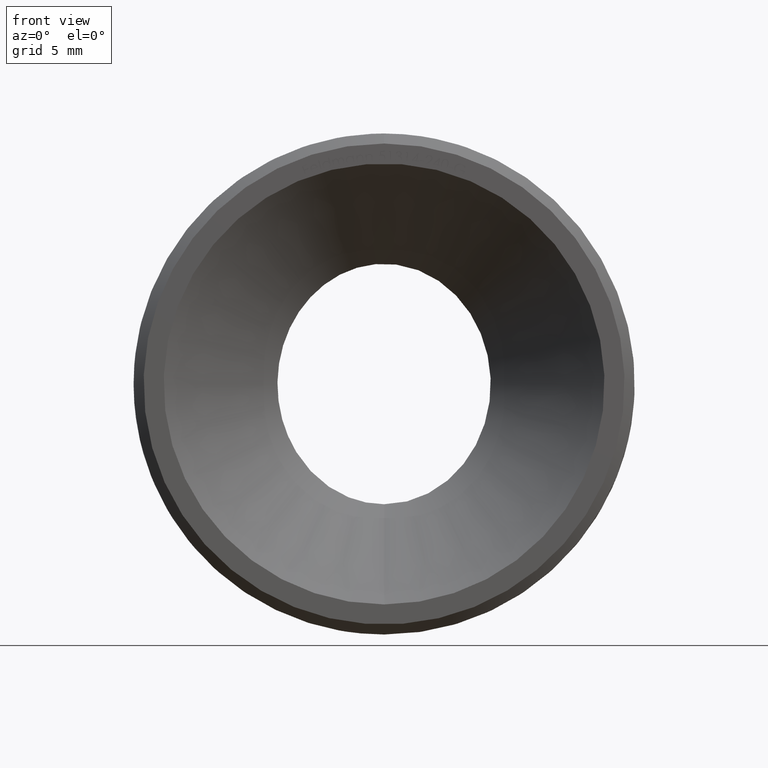
[diagram: clean part render]
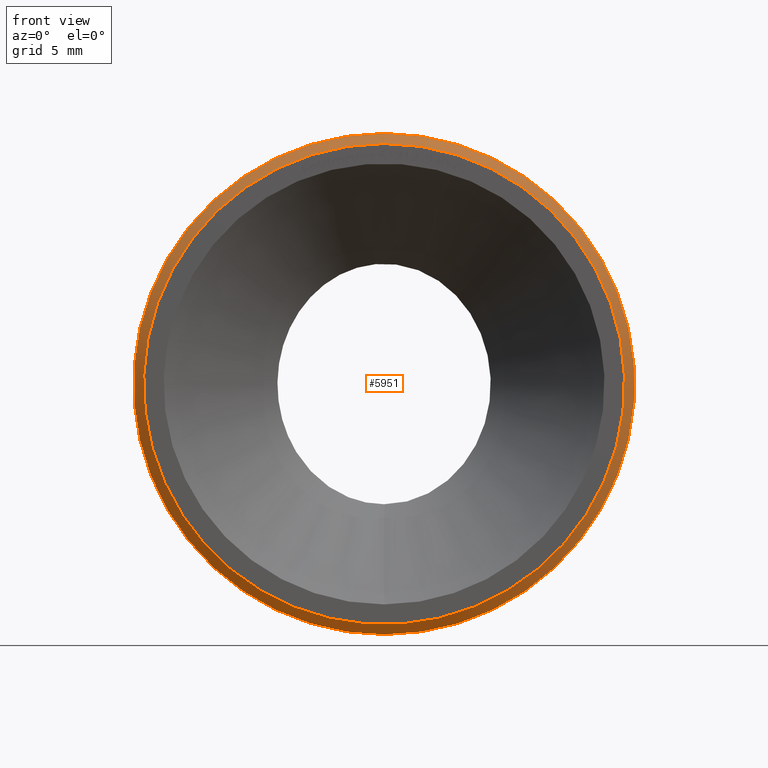
[diagram: same view with one face highlighted and labeled with its STEP entity id]
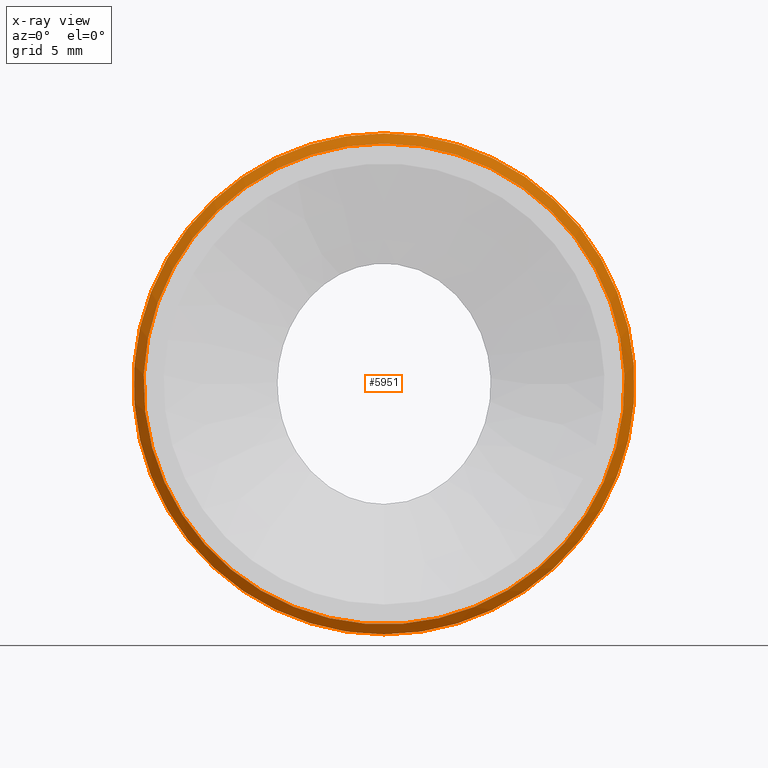
[diagram: x-ray of the same camera — body ghosted, the highlighted face saturated]
A machine part, front view. The second image highlights one B-rep face of the part: STEP entity #5951.
The next image is the same camera in x-ray: the body ghosted, the highlighted face saturated — about 0% of this face is hidden behind the body in this view.
In plain terms, the highlighted conical surface has half-angle 45 deg.
Its self-contained STEP definition (entity closure, byte-faithful):
#135 = CONICAL_SURFACE ( 'NONE', #2351, 12.50000000000000000, 0.7853981633974500554 ) ;
#151 = DIRECTION ( 'NONE',  ( 0.000000000000000000, 0.000000000000000000, 1.000000000000000000 ) ) ;
#1366 = VERTEX_POINT ( 'NONE', #6069 ) ;
#1831 = FACE_OUTER_BOUND ( 'NONE', #8710, .T. ) ;
#2058 = DIRECTION ( 'NONE',  ( -0.000000000000000000, 1.000000000000000000, -0.000000000000000000 ) ) ;
#2351 = AXIS2_PLACEMENT_3D ( 'NONE', #7839, #3052, #151 ) ;
#2685 = DIRECTION ( 'NONE',  ( 0.000000000000000000, 0.000000000000000000, 1.000000000000000000 ) ) ;
#2912 = FACE_BOUND ( 'NONE', #12604, .T. ) ;
#3040 = CARTESIAN_POINT ( 'NONE',  ( 0.000000000000000000, 0.5000000000000056621, 0.000000000000000000 ) ) ;
#3052 = DIRECTION ( 'NONE',  ( -0.000000000000000000, 1.000000000000000000, -0.000000000000000000 ) ) ;
#3126 = AXIS2_PLACEMENT_3D ( 'NONE', #3040, #2058, #9932 ) ;
#3153 = CARTESIAN_POINT ( 'NONE',  ( 0.000000000000000000, 0.000000000000000000, 11.99999999999999289 ) ) ;
#4515 = ORIENTED_EDGE ( 'NONE', *, *, #12395, .F. ) ;
#5223 = EDGE_CURVE ( 'NONE', #12806, #12806, #12056, .T. ) ;
#5951 = ADVANCED_FACE ( 'NONE', ( #2912, #1831 ), #135, .T. ) ;
#6069 = CARTESIAN_POINT ( 'NONE',  ( 0.000000000000000000, 0.5000000000000056621, 12.50000000000000000 ) ) ;
#6725 = DIRECTION ( 'NONE',  ( -0.000000000000000000, -1.000000000000000000, -0.000000000000000000 ) ) ;
#7839 = CARTESIAN_POINT ( 'NONE',  ( 0.000000000000000000, 0.5000000000000056621, 0.000000000000000000 ) ) ;
#8532 = AXIS2_PLACEMENT_3D ( 'NONE', #12534, #6725, #2685 ) ;
#8710 = EDGE_LOOP ( 'NONE', ( #4515 ) ) ;
#9932 = DIRECTION ( 'NONE',  ( 0.000000000000000000, 0.000000000000000000, 1.000000000000000000 ) ) ;
#10015 = ORIENTED_EDGE ( 'NONE', *, *, #5223, .F. ) ;
#11882 = CIRCLE ( 'NONE', #3126, 12.50000000000000000 ) ;
#12056 = CIRCLE ( 'NONE', #8532, 11.99999999999999289 ) ;
#12395 = EDGE_CURVE ( 'NONE', #1366, #1366, #11882, .T. ) ;
#12534 = CARTESIAN_POINT ( 'NONE',  ( 0.000000000000000000, 0.000000000000000000, 0.000000000000000000 ) ) ;
#12604 = EDGE_LOOP ( 'NONE', ( #10015 ) ) ;
#12806 = VERTEX_POINT ( 'NONE', #3153 ) ;